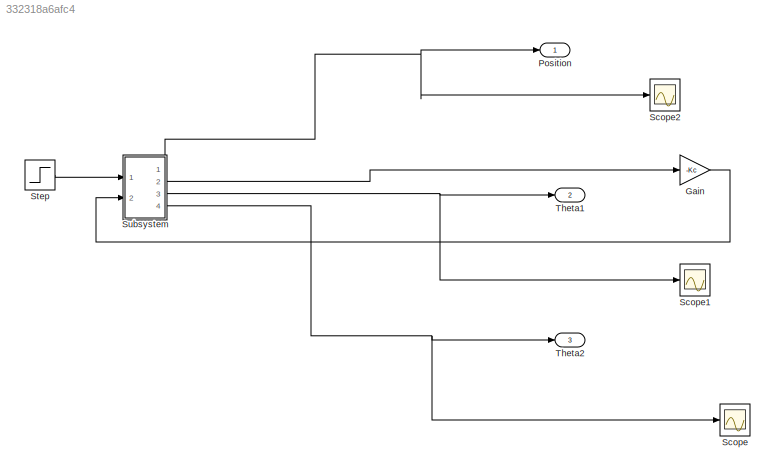
MODEL slx_332318a6afc4
KIND model
CONFIG AbsTol = auto
CONFIG EnableMultiTasking = off
CONFIG FixedStep = auto
CONFIG MaxStep = auto
CONFIG MinStep = auto
CONFIG RelTol = 1e-3
CONFIG SampleTimeConstraint = Unconstrained
CONFIG Solver = VariableStepAuto
CONFIG SolverName = VariableStepAuto
CONFIG StartTime = 0.0
CONFIG StopTime = 3000
BLOCK [Gain] Gain
  Gain = -Kc
  Multiplication = Matrix(K*u)
  OutDataTypeStr = Inherit: Inherit via internal rule
  ParamDataTypeStr = Inherit: Inherit via internal rule
  SaturateOnIntegerOverflow = off
BLOCK [Outport] Position
  IconDisplay = Port number
BLOCK [Scope] Scope
  NumInputPorts = 1
  Ports = [1]
  ScopeSpecificationString = Simulink.scopes.TimeScopeBlockCfg('CurrentConfiguration', extmgr.ConfigurationSet(extmgr.Configuration('Core','General UI',true),extmgr.Configuration('Core','Source UI',true),extmgr.Configuration('Sources','WiredSimulink',true,'DataLoggingVariableName','ScopeData1'),extmgr.Configuration('Visuals','Time Domain',true,'SerializedDisplays',{struct('MinYLimReal','-0.05224','MaxYLimReal','0.04861','YLab...<+1403ch>
BLOCK [Scope] Scope1
  NumInputPorts = 1
  Ports = [1]
  ScopeSpecificationString = Simulink.scopes.TimeScopeBlockCfg('CurrentConfiguration', extmgr.ConfigurationSet(extmgr.Configuration('Core','General UI',true),extmgr.Configuration('Core','Source UI',true),extmgr.Configuration('Sources','WiredSimulink',true,'DataLoggingVariableName','ScopeData2'),extmgr.Configuration('Visuals','Time Domain',true,'SerializedDisplays',{struct('MinYLimReal','-0.04117','MaxYLimReal','0.03847','YLab...<+1403ch>
BLOCK [Scope] Scope2
  NumInputPorts = 1
  Ports = [1]
  ScopeSpecificationString = Simulink.scopes.TimeScopeBlockCfg('CurrentConfiguration', extmgr.ConfigurationSet(extmgr.Configuration('Core','General UI',true),extmgr.Configuration('Core','Source UI',true),extmgr.Configuration('Sources','WiredSimulink',true),extmgr.Configuration('Visuals','Time Domain',true,'SerializedDisplays',{struct('MinYLimReal','-4.52401','MaxYLimReal','0.71607','YLabelReal','','MinYLimMag','0.00000','MaxY...<+1363ch>
BLOCK [Step] Step
  SampleTime = 0
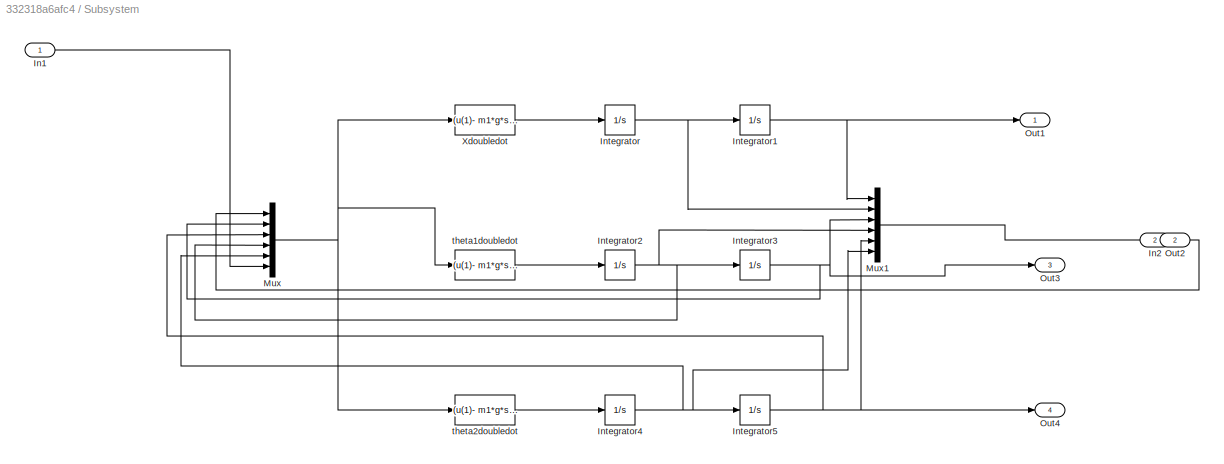
BLOCK [SubSystem] Subsystem
  Ports = [2, 4]
  RequestExecContextInheritance = off
  Variant = off
BLOCK [Inport] Subsystem/In1
  IconDisplay = Port number
BLOCK [Inport] Subsystem/In2
  IconDisplay = Port number
  Port = 2
BLOCK [Integrator] Subsystem/Integrator
  Ports = [1, 1]
BLOCK [Integrator] Subsystem/Integrator1
  InitialCondition = -4
  Ports = [1, 1]
BLOCK [Integrator] Subsystem/Integrator2
  Ports = [1, 1]
BLOCK [Integrator] Subsystem/Integrator3
  Ports = [1, 1]
BLOCK [Integrator] Subsystem/Integrator4
  Ports = [1, 1]
BLOCK [Integrator] Subsystem/Integrator5
  Ports = [1, 1]
BLOCK [Mux] Subsystem/Mux
  DisplayOption = bar
  Inputs = 6
  Ports = [6, 1]
BLOCK [Mux] Subsystem/Mux1
  DisplayOption = bar
  Inputs = 6
  Ports = [6, 1]
BLOCK [Outport] Subsystem/Out1
  IconDisplay = Port number
BLOCK [Outport] Subsystem/Out2
  IconDisplay = Port number
  Port = 2
BLOCK [Outport] Subsystem/Out3
  IconDisplay = Port number
  Port = 3
BLOCK [Outport] Subsystem/Out4
  IconDisplay = Port number
  Port = 4
BLOCK [Fcn] Subsystem/Xdoubledot
  Expr = (u(1)- m1*g*sin(u(2))*cos(u(2)) - m1*l1*sin(u(2))*(u(4))^2 - m2*g*sin(u(3))*cos(u(3)) - m2*l2*sin(u(3))*(u(5))^2)/(M + m1*(sin(u(2)))^2 + m2*(sin(u(3)))^2)
BLOCK [Fcn] Subsystem/theta1doubledot
  Expr = (u(1)- m1*g*sin(u(2))*cos(u(2)) - m1*l1*sin(u(2))*(u(4))^2 - m2*g*sin(u(3))*cos(u(3)) - m2*l2*sin(u(3))*(u(5))^2)*cos(u(2))/(l1*(M + m1*(sin(u(2)))^2 + m2*(sin(u(3)))^2)) - (g*sin(u(2)))/l1
BLOCK [Fcn] Subsystem/theta2doubledot
  Expr = (u(1)- m1*g*sin(u(2))*cos(u(2)) - m1*l1*sin(u(2))*(u(4))^2 - m2*g*sin(u(3))*cos(u(3)) - m2*l2*sin(u(3))*(u(5))^2)*cos(u(3))/(l2*(M + m1*(sin(u(2)))^2 + m2*(sin(u(3)))^2)) - (g*sin(u(3)))/l2
BLOCK [Outport] Theta1
  IconDisplay = Port number
  Port = 2
BLOCK [Outport] Theta2
  IconDisplay = Port number
  Port = 3
LINE Gain:1 -> Subsystem:2
LINE Step:1 -> Subsystem:1
LINE Subsystem/In1:1 -> Subsystem/Mux:6
LINE Subsystem/In2:1 -> Subsystem/Mux:1
NET Subsystem/Integrator1:1 -> Subsystem/Mux1:1, Subsystem/Out1:1
NET Subsystem/Integrator2:1 -> Subsystem/Integrator3:1, Subsystem/Mux1:4, Subsystem/Mux:4
NET Subsystem/Integrator3:1 -> Subsystem/Mux1:3, Subsystem/Mux:2, Subsystem/Out3:1
NET Subsystem/Integrator4:1 -> Subsystem/Integrator5:1, Subsystem/Mux1:6, Subsystem/Mux:5
NET Subsystem/Integrator5:1 -> Subsystem/Mux1:5, Subsystem/Mux:3, Subsystem/Out4:1
NET Subsystem/Integrator:1 -> Subsystem/Integrator1:1, Subsystem/Mux1:2
LINE Subsystem/Mux1:1 -> Subsystem/Out2:1
NET Subsystem/Mux:1 -> Subsystem/Xdoubledot:1, Subsystem/theta1doubledot:1, Subsystem/theta2doubledot:1
LINE Subsystem/Xdoubledot:1 -> Subsystem/Integrator:1
LINE Subsystem/theta1doubledot:1 -> Subsystem/Integrator2:1
LINE Subsystem/theta2doubledot:1 -> Subsystem/Integrator4:1
NET Subsystem:1 -> Position:1, Scope2:1
LINE Subsystem:2 -> Gain:1
NET Subsystem:3 -> Scope1:1, Theta1:1
NET Subsystem:4 -> Scope:1, Theta2:1
note: NET lines group one-source signal fan-out (src -> all destinations, sorted); 1:1 wires keep LINE
